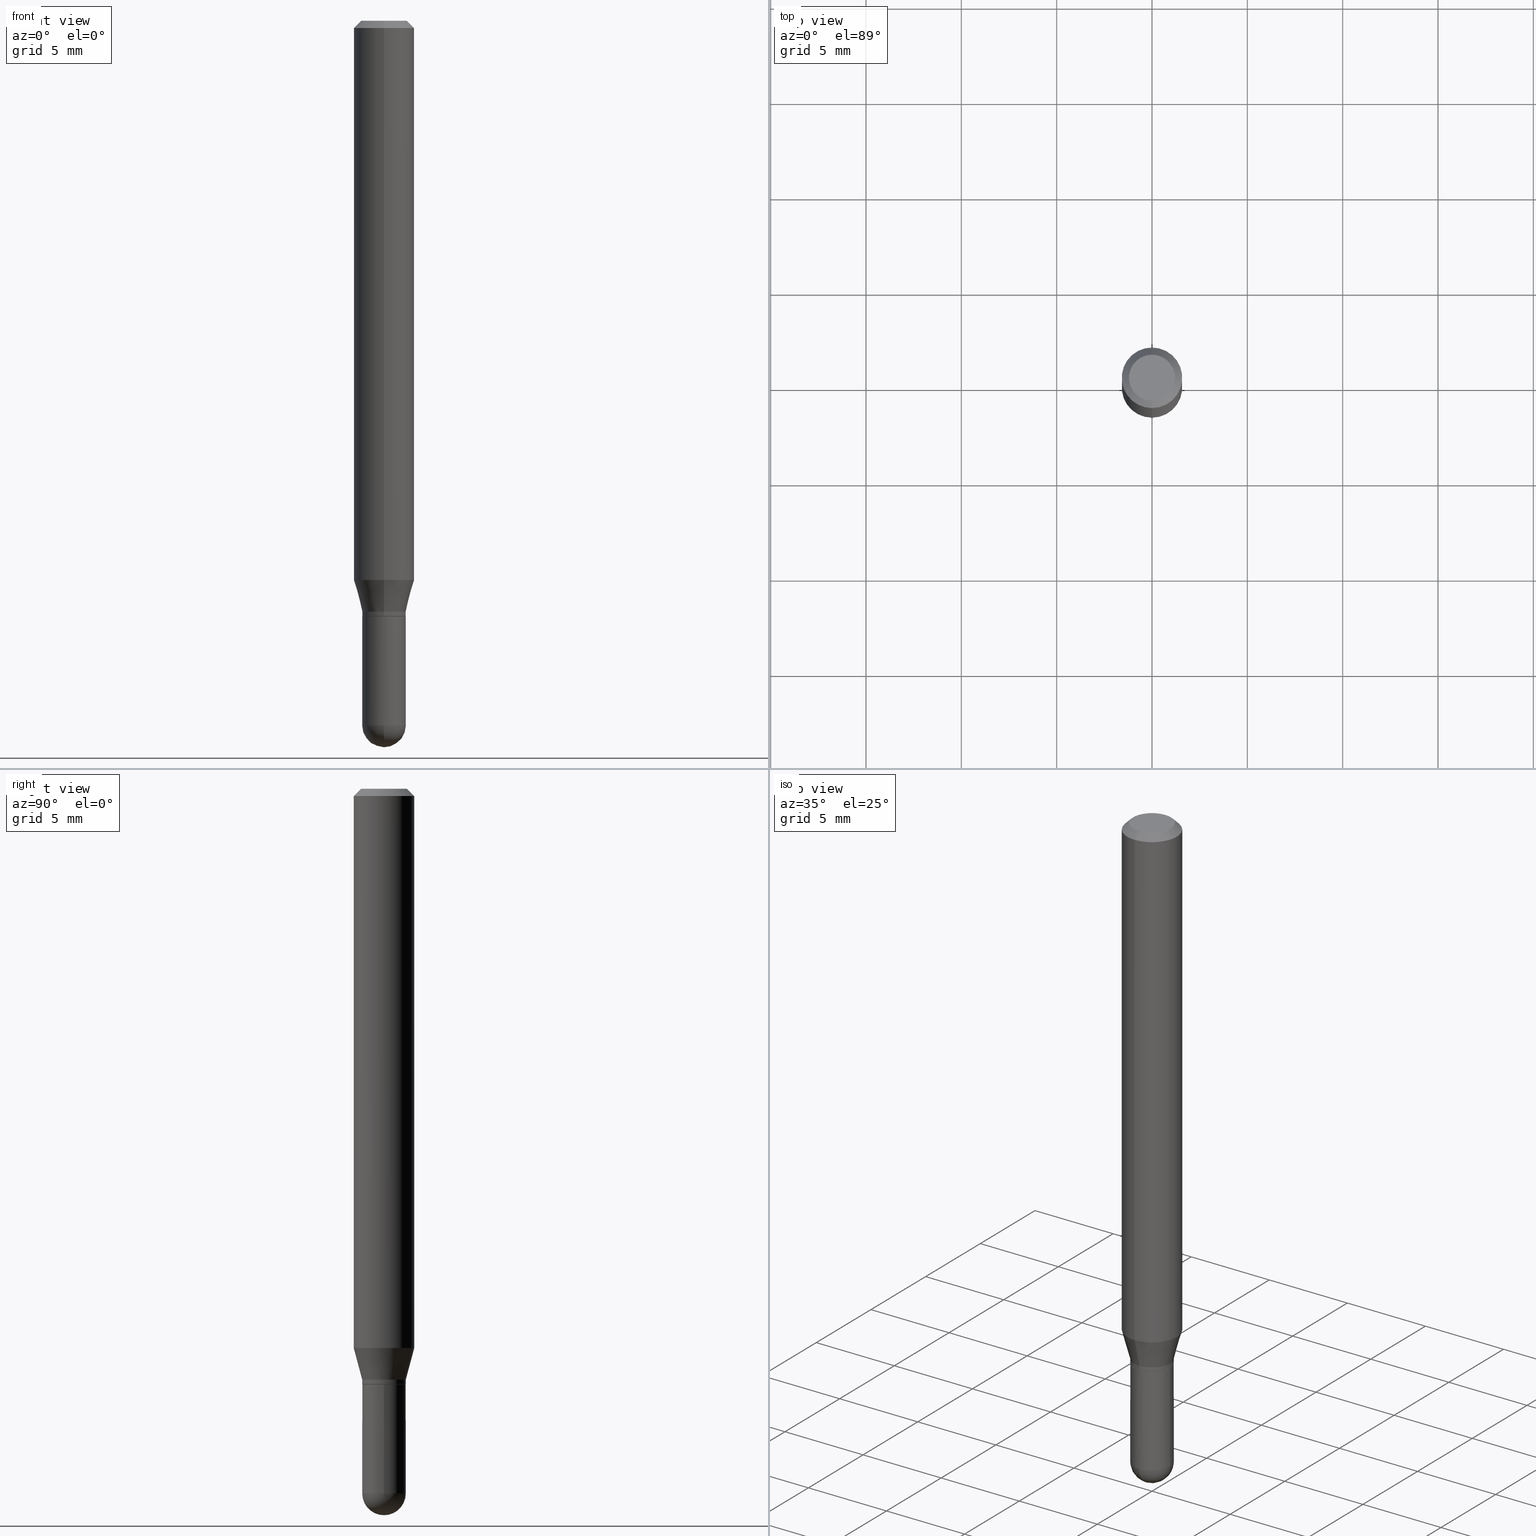
[diagram: canonical four-view strip — front | top / right | iso, engineering-drawing reading convention]
A machine part, canonical four-view strip (front | top / right | iso — engineering-drawing reading convention). The complete STEP part file that produces these views, byte-faithful:
ISO-10303-21;
HEADER;
FILE_DESCRIPTION (( 'STEP AP203' ),
    '1' );
FILE_NAME ('02632.STEP',
    '2024-03-07T20:55:00',
    ( '' ),
    ( '' ),
    'SwSTEP 2.0',
    'SolidWorks 2023',
    '' );
FILE_SCHEMA (( 'CONFIG_CONTROL_DESIGN' ));
ENDSEC;

DATA;
#1 = VERTEX_POINT ( 'NONE', #166 ) ;
#2 = ORIENTED_EDGE ( 'NONE', *, *, #337, .F. ) ;
#3 = FACE_OUTER_BOUND ( 'NONE', #89, .T. ) ;
#4 = DIRECTION ( 'NONE',  ( -2.445470756859343624E-29, 3.491478545366655797E-15, 1.000000000000000000 ) ) ;
#5 = CONICAL_SURFACE ( 'NONE', #70, 0.04449999999999999789, 0.7853981633974739252 ) ;
#6 = CC_DESIGN_SECURITY_CLASSIFICATION ( #303, ( #414 ) ) ;
#7 = ORIENTED_EDGE ( 'NONE', *, *, #8, .F. ) ;
#8 = EDGE_CURVE ( 'NONE', #398, #150, #356, .T. ) ;
#9 = ORIENTED_EDGE ( 'NONE', *, *, #288, .F. ) ;
#10 = ORIENTED_EDGE ( 'NONE', *, *, #31, .F. ) ;
#11 = PERSON_AND_ORGANIZATION ( #320, #64 ) ;
#12 = CIRCLE ( 'NONE', #93, 0.04749999999999999362 ) ;
#13 = ORIENTED_EDGE ( 'NONE', *, *, #36, .T. ) ;
#14 = DIRECTION ( 'NONE',  ( -6.982962677686265922E-15, -1.000000000000000000, 6.070773319253902486E-15 ) ) ;
#15 = EDGE_CURVE ( 'NONE', #37, #479, #294, .T. ) ;
#16 = CARTESIAN_POINT ( 'NONE',  ( 3.668206135289095817E-31, -5.237217818050098401E-17, -0.01500000000000032904 ) ) ;
#17 = DIRECTION ( 'NONE',  ( -6.982962677686265922E-15, -1.000000000000000000, 3.483106191921935554E-15 ) ) ;
#18 = CONICAL_SURFACE ( 'NONE', #168, 0.04500000000000006078, 0.2617993877991500740 ) ;
#19 = AXIS2_PLACEMENT_3D ( 'NONE', #381, #22, #180 ) ;
#20 = VECTOR ( 'NONE', #90, 39.37007874015748143 ) ;
#21 = DIRECTION ( 'NONE',  ( 2.438088387897960049E-29, -3.491481338843145188E-15, -1.000000000000000000 ) ) ;
#22 = DIRECTION ( 'NONE',  ( -2.445468806185136597E-29, 3.491481338843145583E-15, 1.000000000000000000 ) ) ;
#23 = CARTESIAN_POINT ( 'NONE',  ( 3.142333204959120083E-16, 0.04499999999999570316, -1.230000000000000204 ) ) ;
#24 = CARTESIAN_POINT ( 'NONE',  ( 0.000000000000000000, 0.000000000000000000, 0.000000000000000000 ) ) ;
#25 = DIRECTION ( 'NONE',  ( -2.445470756859343624E-29, 3.491478545366655797E-15, 1.000000000000000000 ) ) ;
#26 = DIRECTION ( 'NONE',  ( -2.445470756859343624E-29, 3.491478545366655797E-15, 1.000000000000000000 ) ) ;
#27 = AXIS2_PLACEMENT_3D ( 'NONE', #500, #502, #139 ) ;
#28 = DIRECTION ( 'NONE',  ( -6.982962677686265922E-15, -1.000000000000000000, 3.491478545366655797E-15 ) ) ;
#29 = CIRCLE ( 'NONE', #19, 0.04500000000000001221 ) ;
#30 = ORIENTED_EDGE ( 'NONE', *, *, #175, .F. ) ;
#31 = EDGE_CURVE ( 'NONE', #161, #37, #164, .T. ) ;
#32 = LINE ( 'NONE', #512, #335 ) ;
#33 = DIRECTION ( 'NONE',  ( -2.445468806185136597E-29, 3.491481338843145583E-15, 1.000000000000000000 ) ) ;
#34 = ORIENTED_EDGE ( 'NONE', *, *, #497, .F. ) ;
#35 = CARTESIAN_POINT ( 'NONE',  ( 3.161915174132745937E-16, 0.04449999999999570272, -1.230000000000000204 ) ) ;
#36 = EDGE_CURVE ( 'NONE', #167, #428, #420, .T. ) ;
#37 = VERTEX_POINT ( 'NONE', #324 ) ;
#38 = CIRCLE ( 'NONE', #49, 0.06250000000000000000 ) ;
#39 = MECHANICAL_CONTEXT ( 'NONE', #306, 'mechanical' ) ;
#40 = ORIENTED_EDGE ( 'NONE', *, *, #248, .T. ) ;
#41 = ORIENTED_EDGE ( 'NONE', *, *, #354, .T. ) ;
#42 = CARTESIAN_POINT ( 'NONE',  ( -0.04500000000000000527, 3.197442310920451211E-16, -2.213520790614707910E-30 ) ) ;
#43 = APPROVAL_STATUS ( 'not_yet_approved' ) ;
#44 = ADVANCED_FACE ( 'NONE', ( #3 ), #155, .T. ) ;
#45 = DIRECTION ( 'NONE',  ( -6.982962677686265922E-15, -1.000000000000000000, 3.483106191921935554E-15 ) ) ;
#46 = PERSON_AND_ORGANIZATION_ROLE ( 'creator' ) ;
#47 = ORIENTED_EDGE ( 'NONE', *, *, #282, .T. ) ;
#48 =( LENGTH_UNIT ( ) NAMED_UNIT ( * ) SI_UNIT ( $, .METRE. ) );
#49 = AXIS2_PLACEMENT_3D ( 'NONE', #16, #376, #17 ) ;
#50 = APPROVAL_PERSON_ORGANIZATION ( #95, #129, #290 ) ;
#51 = CC_DESIGN_PERSON_AND_ORGANIZATION_ASSIGNMENT ( #116, #165, ( #468 ) ) ;
#52 = ORIENTED_EDGE ( 'NONE', *, *, #370, .T. ) ;
#53 = ORIENTED_EDGE ( 'NONE', *, *, #8, .T. ) ;
#54 = DIRECTION ( 'NONE',  ( -6.982962677686265922E-15, -1.000000000000000000, 3.069492127712655324E-15 ) ) ;
#55 = LOCAL_TIME ( 15, 55, 0.000000000000000000, #362 ) ;
#56 = DIRECTION ( 'NONE',  ( -2.445470756859343624E-29, 3.491478545366655797E-15, 1.000000000000000000 ) ) ;
#57 = PERSON_AND_ORGANIZATION_ROLE ( 'design_supplier' ) ;
#58 = LINE ( 'NONE', #251, #482 ) ;
#59 = CARTESIAN_POINT ( 'NONE',  ( -3.142333204958468779E-16, -0.04500000000000515393, -1.454999999999999849 ) ) ;
#60 = DIRECTION ( 'NONE',  ( -6.982962677686265922E-15, -1.000000000000000000, 3.491478545366655797E-15 ) ) ;
#61 = CLOSED_SHELL ( 'NONE', ( #365, #463, #474, #488, #377, #253, #136, #44, #76, #194, #372, #436 ) ) ;
#62 = CONICAL_SURFACE ( 'NONE', #441, 0.04449999999999999789, 0.7853981633974739252 ) ;
#63 = PRODUCT_RELATED_PRODUCT_CATEGORY ( 'detail', '', ( #468 ) ) ;
#64 = ORGANIZATION ( 'UNSPECIFIED', 'UNSPECIFIED', '' ) ;
#65 = CARTESIAN_POINT ( 'NONE',  ( 0.000000000000000000, 0.000000000000000000, 0.000000000000000000 ) ) ;
#66 = DIRECTION ( 'NONE',  ( -2.445470756859343624E-29, 3.491478545366655797E-15, 1.000000000000000000 ) ) ;
#67 = CARTESIAN_POINT ( 'NONE',  ( 3.197442310920752950E-16, 0.04499999999999580030, -1.220000000000000417 ) ) ;
#68 = EDGE_CURVE ( 'NONE', #368, #428, #201, .T. ) ;
#69 = ORIENTED_EDGE ( 'NONE', *, *, #15, .F. ) ;
#70 = AXIS2_PLACEMENT_3D ( 'NONE', #475, #26, #466 ) ;
#71 = CARTESIAN_POINT ( 'NONE',  ( 2.823758453890498929E-29, -4.031572257162534122E-15, -1.154689110867545443 ) ) ;
#72 = CIRCLE ( 'NONE', #240, 0.04749999999999999362 ) ;
#73 = ORIENTED_EDGE ( 'NONE', *, *, #296, .T. ) ;
#74 = DIRECTION ( 'NONE',  ( 7.105427357601001070E-15, 1.000000000000000000, 0.000000000000000000 ) ) ;
#75 = ORIENTED_EDGE ( 'NONE', *, *, #99, .T. ) ;
#76 = ADVANCED_FACE ( 'NONE', ( #163 ), #484, .F. ) ;
#77 = COORDINATED_UNIVERSAL_TIME_OFFSET ( 5, 0, .BEHIND. ) ;
#78 = ORIENTED_EDGE ( 'NONE', *, *, #296, .F. ) ;
#79 = CIRCLE ( 'NONE', #326, 0.04500000000000006078 ) ;
#80 = AXIS2_PLACEMENT_3D ( 'NONE', #104, #348, #60 ) ;
#81 = DIRECTION ( 'NONE',  ( 1.000000000000000000, 0.000000000000000000, 0.000000000000000000 ) ) ;
#82 = ORIENTED_EDGE ( 'NONE', *, *, #262, .T. ) ;
#83 = EDGE_CURVE ( 'NONE', #445, #167, #130, .T. ) ;
#84 = VERTEX_POINT ( 'NONE', #214 ) ;
#85 = APPROVAL ( #157, 'UNSPECIFIED' ) ;
#86 = ORIENTED_EDGE ( 'NONE', *, *, #407, .F. ) ;
#87 = AXIS2_PLACEMENT_3D ( 'NONE', #392, #298, #184 ) ;
#88 = DIMENSIONAL_EXPONENTS ( 1.000000000000000000, 0.000000000000000000, 0.000000000000000000, 0.000000000000000000, 0.000000000000000000, 0.000000000000000000, 0.000000000000000000 ) ;
#89 = EDGE_LOOP ( 'NONE', ( #471, #160, #317, #13 ) ) ;
#90 = DIRECTION ( 'NONE',  ( -2.445468806185136877E-29, 3.491481338843145188E-15, 1.000000000000000000 ) ) ;
#91 = APPROVAL_DATE_TIME ( #125, #129 ) ;
#92 = FACE_OUTER_BOUND ( 'NONE', #451, .T. ) ;
#93 = AXIS2_PLACEMENT_3D ( 'NONE', #429, #25, #222 ) ;
#94 = DIRECTION ( 'NONE',  ( -6.982962677686265922E-15, -1.000000000000000000, 3.035386659626955187E-15 ) ) ;
#95 = PERSON_AND_ORGANIZATION ( #320, #64 ) ;
#96 = DIRECTION ( 'NONE',  ( -2.445468806185136597E-29, 3.491481338843145583E-15, 1.000000000000000000 ) ) ;
#97 = ADVANCED_FACE ( 'NONE', ( #289 ), #331, .T. ) ;
#98 = DIRECTION ( 'NONE',  ( 1.000000000000000000, -6.982962677686267499E-15, 4.876176775795935793E-29 ) ) ;
#99 = EDGE_CURVE ( 'NONE', #158, #84, #454, .T. ) ;
#100 = CYLINDRICAL_SURFACE ( 'NONE', #87, 0.04500000000000006078 ) ;
#101 = VECTOR ( 'NONE', #135, 39.37007874015748854 ) ;
#102 = AXIS2_PLACEMENT_3D ( 'NONE', #217, #339, #173 ) ;
#103 = DIRECTION ( 'NONE',  ( -2.445470756859343624E-29, 3.491478545366656192E-15, 1.000000000000000000 ) ) ;
#104 = CARTESIAN_POINT ( 'NONE',  ( 0.000000000000000000, 0.000000000000000000, 0.000000000000000000 ) ) ;
#105 = DIRECTION ( 'NONE',  ( -2.445470756859343624E-29, 3.491478545366655797E-15, 1.000000000000000000 ) ) ;
#106 = DIRECTION ( 'NONE',  ( 1.000000000000000000, -6.982962677686266711E-15, 0.000000000000000000 ) ) ;
#107 = ORIENTED_EDGE ( 'NONE', *, *, #277, .F. ) ;
#108 = CARTESIAN_POINT ( 'NONE',  ( 3.662430836825745564E-29, -5.245488374158964093E-15, -1.500000000000000444 ) ) ;
#109 = APPLICATION_CONTEXT ( 'configuration controlled 3d designs of mechanical parts and assemblies' ) ;
#110 = CIRCLE ( 'NONE', #178, 0.04500000000000006078 ) ;
#111 = SPHERICAL_SURFACE ( 'NONE', #371, 0.04500000000000011630 ) ;
#112 = AXIS2_PLACEMENT_3D ( 'NONE', #367, #402, #361 ) ;
#113 = ORIENTED_EDGE ( 'NONE', *, *, #282, .F. ) ;
#114 = CYLINDRICAL_SURFACE ( 'NONE', #342, 0.04500000000000006078 ) ;
#115 = EDGE_LOOP ( 'NONE', ( #312, #244, #390, #438, #319 ) ) ;
#116 = PERSON_AND_ORGANIZATION ( #320, #64 ) ;
#117 = EDGE_LOOP ( 'NONE', ( #7, #309, #476, #34 ) ) ;
#118 = AXIS2_PLACEMENT_3D ( 'NONE', #23, #21, #212 ) ;
#119 = LOCAL_TIME ( 15, 55, 0.000000000000000000, #213 ) ;
#120 = ORIENTED_EDGE ( 'NONE', *, *, #273, .F. ) ;
#121 = COORDINATED_UNIVERSAL_TIME_OFFSET ( 5, 0, .BEHIND. ) ;
#122 = CC_DESIGN_PERSON_AND_ORGANIZATION_ASSIGNMENT ( #316, #478, ( #234 ) ) ;
#123 = ORIENTED_EDGE ( 'NONE', *, *, #288, .T. ) ;
#124 = ORIENTED_EDGE ( 'NONE', *, *, #318, .F. ) ;
#125 = DATE_AND_TIME ( #453, #119 ) ;
#126 = CARTESIAN_POINT ( 'NONE',  ( 3.316907271900976096E-16, 0.04749999999999999362, -3.299187711060625845E-16 ) ) ;
#127 = AXIS2_PLACEMENT_3D ( 'NONE', #203, #325, #236 ) ;
#128 = VECTOR ( 'NONE', #103, 39.37007874015748143 ) ;
#129 = APPROVAL ( #174, 'UNSPECIFIED' ) ;
#130 = LINE ( 'NONE', #287, #379 ) ;
#131 = DATE_AND_TIME ( #493, #483 ) ;
#132 = VERTEX_POINT ( 'NONE', #417 ) ;
#133 = CARTESIAN_POINT ( 'NONE',  ( 3.197442310920753937E-16, 0.04499999999999574479, -1.229500000000000259 ) ) ;
#134 = AXIS2_PLACEMENT_3D ( 'NONE', #65, #96, #98 ) ;
#135 = DIRECTION ( 'NONE',  ( -1.807323732225328562E-15, -0.2588190451025179639, 0.9659258262890690894 ) ) ;
#136 = ADVANCED_FACE ( 'NONE', ( #336 ), #245, .T. ) ;
#137 = PLANE ( 'NONE',  #118 ) ;
#138 = CARTESIAN_POINT ( 'NONE',  ( 0.04499999999999999833, -4.608755367272951648E-15, -1.230000000000000204 ) ) ;
#139 = DIRECTION ( 'NONE',  ( 1.000000000000000000, -6.982962677686269077E-15, 0.000000000000000000 ) ) ;
#140 = FACE_OUTER_BOUND ( 'NONE', #187, .T. ) ;
#141 = AXIS2_PLACEMENT_3D ( 'NONE', #496, #464, #54 ) ;
#142 = AXIS2_PLACEMENT_3D ( 'NONE', #219, #311, #305 ) ;
#143 = CARTESIAN_POINT ( 'NONE',  ( 3.554308864698067654E-29, -5.085616258612941015E-15, -1.455000000000000293 ) ) ;
#144 = CARTESIAN_POINT ( 'NONE',  ( 0.04500000000000000527, -3.142333204958820809E-16, 2.194279549108171317E-30 ) ) ;
#145 = VERTEX_POINT ( 'NONE', #382 ) ;
#146 = DIRECTION ( 'NONE',  ( -2.445470756859343624E-29, 3.491478545366655797E-15, 1.000000000000000000 ) ) ;
#147 = VERTEX_POINT ( 'NONE', #375 ) ;
#148 = LINE ( 'NONE', #35, #274 ) ;
#149 = DIRECTION ( 'NONE',  ( -6.982962677686265922E-15, -1.000000000000000000, 3.069492127712655324E-15 ) ) ;
#150 = VERTEX_POINT ( 'NONE', #59 ) ;
#151 = CLOSED_SHELL ( 'NONE', ( #97, #404, #249, #192, #459 ) ) ;
#152 = VECTOR ( 'NONE', #210, 39.37007874015748143 ) ;
#153 = DIRECTION ( 'NONE',  ( -6.982962677686265922E-15, -1.000000000000000000, 4.370956789862821150E-15 ) ) ;
#154 = CC_DESIGN_APPROVAL ( #85, ( #234 ) ) ;
#155 = CONICAL_SURFACE ( 'NONE', #450, 0.06250000000000000000, 0.7853981633974483900 ) ;
#156 = CC_DESIGN_DATE_AND_TIME_ASSIGNMENT ( #131, #412, ( #303 ) ) ;
#157 = APPROVAL_STATUS ( 'not_yet_approved' ) ;
#158 = VERTEX_POINT ( 'NONE', #133 ) ;
#159 =( NAMED_UNIT ( * ) PLANE_ANGLE_UNIT ( ) SI_UNIT ( $, .RADIAN. ) );
#160 = ORIENTED_EDGE ( 'NONE', *, *, #299, .F. ) ;
#161 = VERTEX_POINT ( 'NONE', #411 ) ;
#162 = AXIS2_PLACEMENT_3D ( 'NONE', #247, #208, #14 ) ;
#163 = FACE_OUTER_BOUND ( 'NONE', #238, .T. ) ;
#164 = LINE ( 'NONE', #42, #20 ) ;
#165 = PERSON_AND_ORGANIZATION_ROLE ( 'design_owner' ) ;
#166 = CARTESIAN_POINT ( 'NONE',  ( -4.364351673553634183E-16, -0.06250000000000402456, -1.154689110867545221 ) ) ;
#167 = VERTEX_POINT ( 'NONE', #373 ) ;
#168 = AXIS2_PLACEMENT_3D ( 'NONE', #341, #258, #308 ) ;
#169 = CC_DESIGN_APPROVAL ( #385, ( #414 ) ) ;
#170 = AXIS2_PLACEMENT_3D ( 'NONE', #423, #383, #106 ) ;
#171 = DIRECTION ( 'NONE',  ( -2.445468806185136597E-29, 3.491481338843145583E-15, 1.000000000000000000 ) ) ;
#172 = DIRECTION ( 'NONE',  ( 4.937700262164548042E-15, 0.7071067811865451302, -0.7071067811865499042 ) ) ;
#173 = DIRECTION ( 'NONE',  ( -6.982962677686265922E-15, -1.000000000000000000, 3.491478545366656192E-15 ) ) ;
#174 = APPROVAL_STATUS ( 'not_yet_approved' ) ;
#175 = EDGE_CURVE ( 'NONE', #428, #167, #38, .T. ) ;
#176 = LINE ( 'NONE', #499, #101 ) ;
#177 = DIRECTION ( 'NONE',  ( -6.982962677686265922E-15, -1.000000000000000000, 6.070773319253902486E-15 ) ) ;
#178 = AXIS2_PLACEMENT_3D ( 'NONE', #228, #66, #260 ) ;
#179 = CARTESIAN_POINT ( 'NONE',  ( 2.983474323368400179E-29, -4.259603825347321390E-15, -1.220000000000000417 ) ) ;
#180 = DIRECTION ( 'NONE',  ( 1.000000000000000000, -6.982962677686266711E-15, 0.000000000000000000 ) ) ;
#181 = DIRECTION ( 'NONE',  ( -6.982962677686265922E-15, -1.000000000000000000, 3.035386659626955187E-15 ) ) ;
#182 = CARTESIAN_POINT ( 'NONE',  ( 8.024740890725792130E-45, -1.145718490949312714E-30, -3.281470804022929806E-16 ) ) ;
#183 = LINE ( 'NONE', #67, #239 ) ;
#184 = DIRECTION ( 'NONE',  ( -6.982962677686265922E-15, -1.000000000000000000, 3.491478545366655797E-15 ) ) ;
#185 = CIRCLE ( 'NONE', #422, 0.04500000000000006078 ) ;
#186 = CARTESIAN_POINT ( 'NONE',  ( -3.142333204958524493E-16, -0.04500000000000436984, -1.229500000000000037 ) ) ;
#187 = EDGE_LOOP ( 'NONE', ( #10, #189, #272, #405, #69 ) ) ;
#188 = FACE_OUTER_BOUND ( 'NONE', #480, .T. ) ;
#189 = ORIENTED_EDGE ( 'NONE', *, *, #407, .T. ) ;
#190 = MANIFOLD_SOLID_BREP ( 'Body-Move/Copy2[1]', #151 ) ;
#191 = CARTESIAN_POINT ( 'NONE',  ( 3.554308864698067654E-29, -5.085616258612941015E-15, -1.455000000000000293 ) ) ;
#192 = ADVANCED_FACE ( 'NONE', ( #494 ), #416, .T. ) ;
#193 = ORIENTED_EDGE ( 'NONE', *, *, #262, .F. ) ;
#194 = ADVANCED_FACE ( 'NONE', ( #92 ), #300, .F. ) ;
#195 = AXIS2_PLACEMENT_3D ( 'NONE', #199, #4, #45 ) ;
#196 = VECTOR ( 'NONE', #223, 39.37007874015748143 ) ;
#197 = ORIENTED_EDGE ( 'NONE', *, *, #15, .T. ) ;
#198 = ORIENTED_EDGE ( 'NONE', *, *, #329, .T. ) ;
#199 = CARTESIAN_POINT ( 'NONE',  ( 3.668206135289095817E-31, -5.237217818050098401E-17, -0.01500000000000032904 ) ) ;
#200 = APPROVAL_ROLE ( '' ) ;
#201 = LINE ( 'NONE', #489, #380 ) ;
#202 = CIRCLE ( 'NONE', #293, 0.04500000000000006078 ) ;
#203 = CARTESIAN_POINT ( 'NONE',  ( 3.554308864698067654E-29, -5.085616258612941015E-15, -1.455000000000000293 ) ) ;
#204 = CARTESIAN_POINT ( 'NONE',  ( 0.000000000000000000, 0.000000000000000000, 0.000000000000000000 ) ) ;
#205 = DIRECTION ( 'NONE',  ( 6.982962677686265922E-15, 1.000000000000000000, -3.483106191921935554E-15 ) ) ;
#206 = ORIENTED_EDGE ( 'NONE', *, *, #467, .T. ) ;
#207 = SECURITY_CLASSIFICATION_LEVEL ( 'unclassified' ) ;
#208 = DIRECTION ( 'NONE',  ( 1.000000000000000000, -6.982962677686265922E-15, 4.883557194083112340E-29 ) ) ;
#209 = AXIS2_PLACEMENT_3D ( 'NONE', #462, #56, #250 ) ;
#210 = DIRECTION ( 'NONE',  ( -2.445470756859343624E-29, 3.491478545366656192E-15, 1.000000000000000000 ) ) ;
#211 = UNCERTAINTY_MEASURE_WITH_UNIT (LENGTH_MEASURE( 1.000000000000000082E-05 ), #446, 'distance_accuracy_value', 'NONE');
#212 = DIRECTION ( 'NONE',  ( -1.000000000000000000, 6.982962677686265922E-15, -4.876176775795935793E-29 ) ) ;
#213 = COORDINATED_UNIVERSAL_TIME_OFFSET ( 5, 0, .BEHIND. ) ;
#214 = CARTESIAN_POINT ( 'NONE',  ( 3.819167204710830318E-16, 0.04499999999999580030, -1.220000000000000417 ) ) ;
#215 = DIRECTION ( 'NONE',  ( 1.000000000000000000, -6.982962677686266711E-15, 0.000000000000000000 ) ) ;
#216 = AXIS2_PLACEMENT_3D ( 'NONE', #71, #220, #268 ) ;
#217 = CARTESIAN_POINT ( 'NONE',  ( 3.007929030936992806E-29, -4.294518610800986950E-15, -1.230000000000000204 ) ) ;
#218 = CC_DESIGN_PERSON_AND_ORGANIZATION_ASSIGNMENT ( #11, #328, ( #303 ) ) ;
#219 = CARTESIAN_POINT ( 'NONE',  ( 3.668206135289095817E-31, -5.237217818050098401E-17, -0.01500000000000032904 ) ) ;
#220 = DIRECTION ( 'NONE',  ( -2.445470756859343624E-29, 3.491478545366655797E-15, 1.000000000000000000 ) ) ;
#221 = ORIENTED_EDGE ( 'NONE', *, *, #337, .T. ) ;
#222 = DIRECTION ( 'NONE',  ( -6.982962677686266711E-15, -1.000000000000000000, 3.491478545366656192E-15 ) ) ;
#223 = DIRECTION ( 'NONE',  ( -2.445468806185136877E-29, 3.491481338843145188E-15, 1.000000000000000000 ) ) ;
#224 = ORIENTED_EDGE ( 'NONE', *, *, #329, .F. ) ;
#225 = CIRCLE ( 'NONE', #430, 0.04449999999999999789 ) ;
#226 = APPROVAL_PERSON_ORGANIZATION ( #271, #85, #487 ) ;
#227 = LINE ( 'NONE', #387, #128 ) ;
#228 = CARTESIAN_POINT ( 'NONE',  ( 3.006706295558563202E-29, -4.292772871528303633E-15, -1.229500000000000037 ) ) ;
#229 = APPROVAL_DATE_TIME ( #269, #85 ) ;
#230 = VERTEX_POINT ( 'NONE', #461 ) ;
#231 = EDGE_LOOP ( 'NONE', ( #511, #73, #321, #113 ) ) ;
#232 = CIRCLE ( 'NONE', #313, 0.04500000000000001221 ) ;
#233 = LOCAL_TIME ( 15, 55, 0.000000000000000000, #77 ) ;
#234 = PRODUCT_DEFINITION ( 'UNKNOWN', '', #414, #418 ) ;
#235 = CALENDAR_DATE ( 2024, 7, 3 ) ;
#236 = DIRECTION ( 'NONE',  ( -6.982962677686265922E-15, -1.000000000000000000, 0.000000000000000000 ) ) ;
#237 = CALENDAR_DATE ( 2024, 7, 3 ) ;
#238 = EDGE_LOOP ( 'NONE', ( #393, #270 ) ) ;
#239 = VECTOR ( 'NONE', #353, 39.37007874015748854 ) ;
#240 = AXIS2_PLACEMENT_3D ( 'NONE', #182, #340, #503 ) ;
#241 = EDGE_LOOP ( 'NONE', ( #124, #53, #86, #261 ) ) ;
#242 = EDGE_CURVE ( 'NONE', #479, #37, #283, .T. ) ;
#243 = CC_DESIGN_PERSON_AND_ORGANIZATION_ASSIGNMENT ( #374, #57, ( #414 ) ) ;
#244 = ORIENTED_EDGE ( 'NONE', *, *, #31, .T. ) ;
#245 = CYLINDRICAL_SURFACE ( 'NONE', #209, 0.06250000000000000000 ) ;
#246 = CARTESIAN_POINT ( 'NONE',  ( 2.983474323368400179E-29, -4.259603825347321390E-15, -1.220000000000000417 ) ) ;
#247 = CARTESIAN_POINT ( 'NONE',  ( 3.554308864698067654E-29, -5.085616258612941015E-15, -1.455000000000000293 ) ) ;
#248 = EDGE_CURVE ( 'NONE', #352, #132, #254, .T. ) ;
#249 = ADVANCED_FACE ( 'NONE', ( #333 ), #137, .F. ) ;
#250 = DIRECTION ( 'NONE',  ( -6.982962677686265922E-15, -1.000000000000000000, 3.491478545366655797E-15 ) ) ;
#251 = CARTESIAN_POINT ( 'NONE',  ( 4.364351673553919652E-16, 0.06249999999999995143, -0.01500000000000054588 ) ) ;
#252 = EDGE_CURVE ( 'NONE', #323, #230, #358, .T. ) ;
#253 = ADVANCED_FACE ( 'NONE', ( #421 ), #264, .T. ) ;
#254 = LINE ( 'NONE', #297, #406 ) ;
#255 = FACE_OUTER_BOUND ( 'NONE', #330, .T. ) ;
#256 = AXIS2_PLACEMENT_3D ( 'NONE', #191, #469, #74 ) ;
#257 = CARTESIAN_POINT ( 'NONE',  ( -3.773273898774340269E-16, -0.04749999999999999362, -1.623018494973768125E-16 ) ) ;
#258 = DIRECTION ( 'NONE',  ( -2.445470756859343624E-29, 3.491478545366655797E-15, 1.000000000000000000 ) ) ;
#259 = ORIENTED_EDGE ( 'NONE', *, *, #175, .T. ) ;
#260 = DIRECTION ( 'NONE',  ( -6.982962677686265922E-15, -1.000000000000000000, 3.035386659626955187E-15 ) ) ;
#261 = ORIENTED_EDGE ( 'NONE', *, *, #490, .F. ) ;
#262 = EDGE_CURVE ( 'NONE', #132, #84, #202, .T. ) ;
#263 = FACE_OUTER_BOUND ( 'NONE', #447, .T. ) ;
#264 = CONICAL_SURFACE ( 'NONE', #399, 0.04500000000000006078, 0.2617993877991500740 ) ;
#265 = DIRECTION ( 'NONE',  ( 5.024295867788190974E-15, 0.7071067811865681119, 0.7071067811865270336 ) ) ;
#266 = DIRECTION ( 'NONE',  ( 0.000000000000000000, 0.000000000000000000, 1.000000000000000000 ) ) ;
#267 = ORIENTED_EDGE ( 'NONE', *, *, #36, .F. ) ;
#268 = DIRECTION ( 'NONE',  ( -6.982962677686265922E-15, -1.000000000000000000, 4.370956789862821150E-15 ) ) ;
#269 = DATE_AND_TIME ( #235, #314 ) ;
#270 = ORIENTED_EDGE ( 'NONE', *, *, #501, .T. ) ;
#271 = PERSON_AND_ORGANIZATION ( #320, #64 ) ;
#272 = ORIENTED_EDGE ( 'NONE', *, *, #497, .T. ) ;
#273 = EDGE_CURVE ( 'NONE', #145, #167, #58, .T. ) ;
#274 = VECTOR ( 'NONE', #265, 39.37007874015748143 ) ;
#275 = APPROVAL_PERSON_ORGANIZATION ( #401, #385, #200 ) ;
#276 = EDGE_LOOP ( 'NONE', ( #224, #486, #410, #9 ) ) ;
#277 = EDGE_CURVE ( 'NONE', #132, #1, #176, .T. ) ;
#278 = DATE_AND_TIME ( #237, #55 ) ;
#279 = ORIENTED_EDGE ( 'NONE', *, *, #409, .F. ) ;
#280 = ORIENTED_EDGE ( 'NONE', *, *, #248, .F. ) ;
#281 = SHAPE_DEFINITION_REPRESENTATION ( #332, #439 ) ;
#282 = EDGE_CURVE ( 'NONE', #323, #352, #32, .T. ) ;
#283 = CIRCLE ( 'NONE', #27, 0.04499999999999999833 ) ;
#284 = CC_DESIGN_APPROVAL ( #129, ( #303 ) ) ;
#285 = EDGE_CURVE ( 'NONE', #352, #158, #110, .T. ) ;
#286 = ORIENTED_EDGE ( 'NONE', *, *, #83, .F. ) ;
#287 = CARTESIAN_POINT ( 'NONE',  ( 4.440892098500625669E-16, 0.06250000000000000000, -2.182174090854159873E-16 ) ) ;
#288 = EDGE_CURVE ( 'NONE', #445, #1, #449, .T. ) ;
#289 = FACE_OUTER_BOUND ( 'NONE', #115, .T. ) ;
#290 = APPROVAL_ROLE ( '' ) ;
#291 = DIRECTION ( 'NONE',  ( -6.982962677686265922E-15, -1.000000000000000000, 3.035386659626955187E-15 ) ) ;
#292 = DIRECTION ( 'NONE',  ( -2.445470756859343624E-29, 3.491478545366655797E-15, 1.000000000000000000 ) ) ;
#293 = AXIS2_PLACEMENT_3D ( 'NONE', #179, #457, #94 ) ;
#294 = CIRCLE ( 'NONE', #112, 0.04499999999999999833 ) ;
#295 = CARTESIAN_POINT ( 'NONE',  ( 2.983474323368400179E-29, -4.259603825347321390E-15, -1.220000000000000417 ) ) ;
#296 = EDGE_CURVE ( 'NONE', #230, #158, #148, .T. ) ;
#297 = CARTESIAN_POINT ( 'NONE',  ( -3.142333204958823767E-16, -0.04500000000000006078, 1.571165345414997288E-16 ) ) ;
#298 = DIRECTION ( 'NONE',  ( -2.445470756859343624E-29, 3.491478545366655797E-15, 1.000000000000000000 ) ) ;
#299 = EDGE_CURVE ( 'NONE', #145, #368, #12, .T. ) ;
#300 = PLANE ( 'NONE',  #102 ) ;
#301 = AXIS2_PLACEMENT_3D ( 'NONE', #347, #310, #153 ) ;
#302 = DIRECTION ( 'NONE',  ( 1.000000000000000000, -6.982962677686267499E-15, 4.876176775795935793E-29 ) ) ;
#303 = SECURITY_CLASSIFICATION ( '', '', #207 ) ;
#304 = DIRECTION ( 'NONE',  ( 1.000000000000000000, -6.982962677686265922E-15, 4.883557194083112340E-29 ) ) ;
#305 = DIRECTION ( 'NONE',  ( 6.982962677686265922E-15, 1.000000000000000000, -3.483106191921935554E-15 ) ) ;
#306 = APPLICATION_CONTEXT ( 'configuration controlled 3d designs of mechanical parts and assemblies' ) ;
#307 = ORIENTED_EDGE ( 'NONE', *, *, #370, .F. ) ;
#308 = DIRECTION ( 'NONE',  ( -6.982962677686265922E-15, -1.000000000000000000, 3.035386659626955187E-15 ) ) ;
#309 = ORIENTED_EDGE ( 'NONE', *, *, #318, .T. ) ;
#310 = DIRECTION ( 'NONE',  ( -2.445470756859343624E-29, 3.491478545366655797E-15, 1.000000000000000000 ) ) ;
#311 = DIRECTION ( 'NONE',  ( 2.445470756859343624E-29, -3.491478545366655797E-15, -1.000000000000000000 ) ) ;
#312 = ORIENTED_EDGE ( 'NONE', *, *, #490, .T. ) ;
#313 = AXIS2_PLACEMENT_3D ( 'NONE', #315, #171, #491 ) ;
#314 = LOCAL_TIME ( 15, 55, 0.000000000000000000, #121 ) ;
#315 = CARTESIAN_POINT ( 'NONE',  ( 3.558157112999374623E-29, -5.080105348016777334E-15, -1.455000000000000293 ) ) ;
#316 = PERSON_AND_ORGANIZATION ( #320, #64 ) ;
#317 = ORIENTED_EDGE ( 'NONE', *, *, #273, .T. ) ;
#318 = EDGE_CURVE ( 'NONE', #398, #147, #473, .T. ) ;
#319 = ORIENTED_EDGE ( 'NONE', *, *, #495, .T. ) ;
#320 = PERSON ( 'UNSPECIFIED', 'UNSPECIFIED', 'UNSPECIFIED', ('UNSPECIFIED'), ('UNSPECIFIED'), ('UNSPECIFIED') ) ;
#321 = ORIENTED_EDGE ( 'NONE', *, *, #285, .F. ) ;
#322 = APPROVAL_DATE_TIME ( #278, #385 ) ;
#323 = VERTEX_POINT ( 'NONE', #394 ) ;
#324 = CARTESIAN_POINT ( 'NONE',  ( -0.04499999999999999833, -4.367569466304877886E-15, -1.230000000000000204 ) ) ;
#325 = DIRECTION ( 'NONE',  ( -1.000000000000000000, 6.982962677686265922E-15, -4.883557194083112340E-29 ) ) ;
#326 = AXIS2_PLACEMENT_3D ( 'NONE', #246, #413, #291 ) ;
#327 = DIRECTION ( 'NONE',  ( 6.982962677686265922E-15, 1.000000000000000000, -3.491478545366656192E-15 ) ) ;
#328 = PERSON_AND_ORGANIZATION_ROLE ( 'classification_officer' ) ;
#329 = EDGE_CURVE ( 'NONE', #84, #445, #183, .T. ) ;
#330 = EDGE_LOOP ( 'NONE', ( #432, #442, #259, #120 ) ) ;
#331 = CYLINDRICAL_SURFACE ( 'NONE', #134, 0.04500000000000000527 ) ;
#332 = PRODUCT_DEFINITION_SHAPE ( 'NONE', 'NONE',  #234 ) ;
#333 = FACE_OUTER_BOUND ( 'NONE', #349, .T. ) ;
#334 = DIRECTION ( 'NONE',  ( -2.445470756859343624E-29, 3.491478545366656192E-15, 1.000000000000000000 ) ) ;
#335 = VECTOR ( 'NONE', #510, 39.37007874015748143 ) ;
#336 = FACE_OUTER_BOUND ( 'NONE', #357, .T. ) ;
#337 = EDGE_CURVE ( 'NONE', #1, #428, #227, .T. ) ;
#338 = CARTESIAN_POINT ( 'NONE',  ( 3.558157112999374623E-29, -5.080105348016777334E-15, -1.455000000000000293 ) ) ;
#339 = DIRECTION ( 'NONE',  ( -2.445470756859342783E-29, 3.491478545366656192E-15, 1.000000000000000000 ) ) ;
#340 = DIRECTION ( 'NONE',  ( -2.445470756859343624E-29, 3.491478545366655797E-15, 1.000000000000000000 ) ) ;
#341 = CARTESIAN_POINT ( 'NONE',  ( 2.983474323368400179E-29, -4.259603825347321390E-15, -1.220000000000000417 ) ) ;
#342 = AXIS2_PLACEMENT_3D ( 'NONE', #384, #105, #28 ) ;
#343 = CARTESIAN_POINT ( 'NONE',  ( 3.007929030936992806E-29, -4.294518610800986950E-15, -1.230000000000000204 ) ) ;
#344 = CONICAL_SURFACE ( 'NONE', #142, 0.06250000000000000000, 0.7853981633974483900 ) ;
#345 = EDGE_LOOP ( 'NONE', ( #82, #198, #307, #107 ) ) ;
#346 = CC_DESIGN_PERSON_AND_ORGANIZATION_ASSIGNMENT ( #403, #46, ( #414 ) ) ;
#347 = CARTESIAN_POINT ( 'NONE',  ( 2.823758453890498929E-29, -4.031572257162534122E-15, -1.154689110867545443 ) ) ;
#348 = DIRECTION ( 'NONE',  ( -2.445470756859343624E-29, 3.491478545366655797E-15, 1.000000000000000000 ) ) ;
#349 = EDGE_LOOP ( 'NONE', ( #452, #197 ) ) ;
#350 = FACE_OUTER_BOUND ( 'NONE', #117, .T. ) ;
#351 = FACE_OUTER_BOUND ( 'NONE', #231, .T. ) ;
#352 = VERTEX_POINT ( 'NONE', #186 ) ;
#353 = DIRECTION ( 'NONE',  ( 1.839019923739598738E-15, 0.2588190451025247363, 0.9659258262890673130 ) ) ;
#354 = EDGE_CURVE ( 'NONE', #158, #352, #185, .T. ) ;
#355 = LENGTH_MEASURE_WITH_UNIT ( LENGTH_MEASURE( 0.02539999999999999897 ), #48 );
#356 = CIRCLE ( 'NONE', #127, 0.04500000000000011630 ) ;
#357 = EDGE_LOOP ( 'NONE', ( #286, #123, #221, #267 ) ) ;
#358 = CIRCLE ( 'NONE', #141, 0.04449999999999999789 ) ;
#359 = DATE_TIME_ROLE ( 'creation_date' ) ;
#360 = EDGE_LOOP ( 'NONE', ( #78, #206, #47, #408 ) ) ;
#361 = DIRECTION ( 'NONE',  ( 1.000000000000000000, -6.982962677686269077E-15, 0.000000000000000000 ) ) ;
#362 = COORDINATED_UNIVERSAL_TIME_OFFSET ( 5, 0, .BEHIND. ) ;
#363 = DIRECTION ( 'NONE',  ( -4.851104656540964275E-15, -0.7071067811865500152, -0.7071067811865450192 ) ) ;
#364 = AXIS2_PLACEMENT_3D ( 'NONE', #126, #369, #327 ) ;
#365 = ADVANCED_FACE ( 'NONE', ( #188 ), #114, .T. ) ;
#366 = MANIFOLD_SOLID_BREP ( 'Body-Move/Copy2[2]', #61 ) ;
#367 = CARTESIAN_POINT ( 'NONE',  ( 3.007926631607718216E-29, -4.294522046777069173E-15, -1.230000000000000204 ) ) ;
#368 = VERTEX_POINT ( 'NONE', #257 ) ;
#369 = DIRECTION ( 'NONE',  ( 2.445470756859342783E-29, -3.491478545366656192E-15, -1.000000000000000000 ) ) ;
#370 = EDGE_CURVE ( 'NONE', #1, #445, #455, .T. ) ;
#371 = AXIS2_PLACEMENT_3D ( 'NONE', #143, #304, #177 ) ;
#372 = ADVANCED_FACE ( 'NONE', ( #424 ), #62, .T. ) ;
#373 = CARTESIAN_POINT ( 'NONE',  ( 4.440892098500909166E-16, 0.06249999999999993755, -0.01500000000000054588 ) ) ;
#374 = PERSON_AND_ORGANIZATION ( #320, #64 ) ;
#375 = CARTESIAN_POINT ( 'NONE',  ( 3.197442310920811129E-16, 0.04499999999999498151, -1.455000000000000515 ) ) ;
#376 = DIRECTION ( 'NONE',  ( -2.445470756859343624E-29, 3.491478545366655797E-15, 1.000000000000000000 ) ) ;
#377 = ADVANCED_FACE ( 'NONE', ( #391 ), #18, .T. ) ;
#378 = CARTESIAN_POINT ( 'NONE',  ( 3.197442310920454169E-16, 0.04500000000000006078, -1.571165345414997288E-16 ) ) ;
#379 = VECTOR ( 'NONE', #415, 39.37007874015748143 ) ;
#380 = VECTOR ( 'NONE', #363, 39.37007874015748143 ) ;
#381 = CARTESIAN_POINT ( 'NONE',  ( 3.558157112999374623E-29, -5.080105348016777334E-15, -1.455000000000000293 ) ) ;
#382 = CARTESIAN_POINT ( 'NONE',  ( 3.840629472727447874E-16, 0.04749999999999999362, -4.939923113072091241E-16 ) ) ;
#383 = DIRECTION ( 'NONE',  ( -2.445468806185136597E-29, 3.491481338843145583E-15, 1.000000000000000000 ) ) ;
#384 = CARTESIAN_POINT ( 'NONE',  ( 0.000000000000000000, 0.000000000000000000, 0.000000000000000000 ) ) ;
#385 = APPROVAL ( #43, 'UNSPECIFIED' ) ;
#386 = CYLINDRICAL_SURFACE ( 'NONE', #388, 0.04500000000000000527 ) ;
#387 = CARTESIAN_POINT ( 'NONE',  ( -4.364351673553916201E-16, -0.06250000000000000000, 2.182174090854159873E-16 ) ) ;
#388 = AXIS2_PLACEMENT_3D ( 'NONE', #24, #33, #302 ) ;
#389 = LINE ( 'NONE', #144, #196 ) ;
#390 = ORIENTED_EDGE ( 'NONE', *, *, #242, .F. ) ;
#391 = FACE_OUTER_BOUND ( 'NONE', #345, .T. ) ;
#392 = CARTESIAN_POINT ( 'NONE',  ( 0.000000000000000000, 0.000000000000000000, 0.000000000000000000 ) ) ;
#393 = ORIENTED_EDGE ( 'NONE', *, *, #299, .T. ) ;
#394 = CARTESIAN_POINT ( 'NONE',  ( -3.107418391570087519E-16, -0.04450000000000429307, -1.229999999999999982 ) ) ;
#395 = VERTEX_POINT ( 'NONE', #504 ) ;
#396 = CC_DESIGN_DATE_AND_TIME_ASSIGNMENT ( #440, #359, ( #234 ) ) ;
#397 = CALENDAR_DATE ( 2024, 7, 3 ) ;
#398 = VERTEX_POINT ( 'NONE', #108 ) ;
#399 = AXIS2_PLACEMENT_3D ( 'NONE', #295, #292, #181 ) ;
#400 = EDGE_LOOP ( 'NONE', ( #52, #507, #30, #2 ) ) ;
#401 = PERSON_AND_ORGANIZATION ( #320, #64 ) ;
#402 = DIRECTION ( 'NONE',  ( -2.445468806185136597E-29, 3.491481338843145583E-15, 1.000000000000000000 ) ) ;
#403 = PERSON_AND_ORGANIZATION ( #320, #64 ) ;
#404 = ADVANCED_FACE ( 'NONE', ( #350 ), #111, .T. ) ;
#405 = ORIENTED_EDGE ( 'NONE', *, *, #444, .T. ) ;
#406 = VECTOR ( 'NONE', #334, 39.37007874015748143 ) ;
#407 = EDGE_CURVE ( 'NONE', #161, #150, #232, .T. ) ;
#408 = ORIENTED_EDGE ( 'NONE', *, *, #354, .F. ) ;
#409 = EDGE_CURVE ( 'NONE', #84, #132, #79, .T. ) ;
#410 = ORIENTED_EDGE ( 'NONE', *, *, #277, .T. ) ;
#411 = CARTESIAN_POINT ( 'NONE',  ( -0.04500000000000001221, -4.367569466304877886E-15, -1.455000000000000293 ) ) ;
#412 = DATE_TIME_ROLE ( 'classification_date' ) ;
#413 = DIRECTION ( 'NONE',  ( -2.445470756859343624E-29, 3.491478545366655797E-15, 1.000000000000000000 ) ) ;
#414 = PRODUCT_DEFINITION_FORMATION_WITH_SPECIFIED_SOURCE ( 'ANY', '', #468, .NOT_KNOWN. ) ;
#415 = DIRECTION ( 'NONE',  ( -2.445470756859343624E-29, 3.491478545366656192E-15, 1.000000000000000000 ) ) ;
#416 = SPHERICAL_SURFACE ( 'NONE', #162, 0.04500000000000011630 ) ;
#417 = CARTESIAN_POINT ( 'NONE',  ( -3.142333204958525479E-16, -0.04500000000000432127, -1.220000000000000195 ) ) ;
#418 = DESIGN_CONTEXT ( 'detailed design', #109, 'design' ) ;
#419 = FACE_OUTER_BOUND ( 'NONE', #400, .T. ) ;
#420 = CIRCLE ( 'NONE', #195, 0.06250000000000000000 ) ;
#421 = FACE_OUTER_BOUND ( 'NONE', #276, .T. ) ;
#422 = AXIS2_PLACEMENT_3D ( 'NONE', #472, #426, #433 ) ;
#423 = CARTESIAN_POINT ( 'NONE',  ( 3.558157112999374623E-29, -5.080105348016777334E-15, -1.455000000000000293 ) ) ;
#424 = FACE_OUTER_BOUND ( 'NONE', #360, .T. ) ;
#425 = CYLINDRICAL_SURFACE ( 'NONE', #80, 0.06250000000000000000 ) ;
#426 = DIRECTION ( 'NONE',  ( -2.445470756859343624E-29, 3.491478545366655797E-15, 1.000000000000000000 ) ) ;
#427 = CARTESIAN_POINT ( 'NONE',  ( 4.440892098500907193E-16, 0.06249999999999596156, -1.154689110867545665 ) ) ;
#428 = VERTEX_POINT ( 'NONE', #460 ) ;
#429 = CARTESIAN_POINT ( 'NONE',  ( 8.024740890725792130E-45, -1.145718490949312714E-30, -3.281470804022929806E-16 ) ) ;
#430 = AXIS2_PLACEMENT_3D ( 'NONE', #343, #506, #149 ) ;
#431 = ORIENTED_EDGE ( 'NONE', *, *, #252, .F. ) ;
#432 = ORIENTED_EDGE ( 'NONE', *, *, #501, .F. ) ;
#433 = DIRECTION ( 'NONE',  ( -6.982962677686265922E-15, -1.000000000000000000, 3.035386659626955187E-15 ) ) ;
#434 = APPLICATION_PROTOCOL_DEFINITION ( 'international standard', 'config_control_design', 1994, #109 ) ;
#435 = ORIENTED_EDGE ( 'NONE', *, *, #467, .F. ) ;
#436 = ADVANCED_FACE ( 'NONE', ( #263 ), #100, .T. ) ;
#437 = APPLICATION_PROTOCOL_DEFINITION ( 'international standard', 'config_control_design', 1994, #306 ) ;
#438 = ORIENTED_EDGE ( 'NONE', *, *, #444, .F. ) ;
#439 = ADVANCED_BREP_SHAPE_REPRESENTATION ( '02632', ( #190, #366, #505 ), #465 ) ;
#440 = DATE_AND_TIME ( #397, #233 ) ;
#441 = AXIS2_PLACEMENT_3D ( 'NONE', #508, #146, #477 ) ;
#442 = ORIENTED_EDGE ( 'NONE', *, *, #68, .T. ) ;
#443 = CIRCLE ( 'NONE', #498, 0.04500000000000001221 ) ;
#444 = EDGE_CURVE ( 'NONE', #395, #479, #389, .T. ) ;
#445 = VERTEX_POINT ( 'NONE', #427 ) ;
#446 =( CONVERSION_BASED_UNIT ( 'INCH', #355 ) LENGTH_UNIT ( ) NAMED_UNIT ( #88 ) );
#447 = EDGE_LOOP ( 'NONE', ( #481, #41, #40, #279 ) ) ;
#448 = DIRECTION ( 'NONE',  ( 2.445470756859343624E-29, -3.491478545366655797E-15, -1.000000000000000000 ) ) ;
#449 = CIRCLE ( 'NONE', #216, 0.06250000000000000000 ) ;
#450 = AXIS2_PLACEMENT_3D ( 'NONE', #492, #448, #205 ) ;
#451 = EDGE_LOOP ( 'NONE', ( #431, #435 ) ) ;
#452 = ORIENTED_EDGE ( 'NONE', *, *, #242, .T. ) ;
#453 = CALENDAR_DATE ( 2024, 7, 3 ) ;
#454 = LINE ( 'NONE', #378, #152 ) ;
#455 = CIRCLE ( 'NONE', #301, 0.06250000000000000000 ) ;
#456 = CIRCLE ( 'NONE', #170, 0.04500000000000001221 ) ;
#457 = DIRECTION ( 'NONE',  ( -2.445470756859343624E-29, 3.491478545366655797E-15, 1.000000000000000000 ) ) ;
#458 = COORDINATED_UNIVERSAL_TIME_OFFSET ( 5, 0, .BEHIND. ) ;
#459 = ADVANCED_FACE ( 'NONE', ( #140 ), #386, .T. ) ;
#460 = CARTESIAN_POINT ( 'NONE',  ( -4.364351673553912750E-16, -0.06250000000000005551, -0.01500000000000011047 ) ) ;
#461 = CARTESIAN_POINT ( 'NONE',  ( 3.179678742526750430E-16, 0.04449999999999570272, -1.230000000000000204 ) ) ;
#462 = CARTESIAN_POINT ( 'NONE',  ( 0.000000000000000000, 0.000000000000000000, 0.000000000000000000 ) ) ;
#463 = ADVANCED_FACE ( 'NONE', ( #351 ), #5, .T. ) ;
#464 = DIRECTION ( 'NONE',  ( -2.445470756859343624E-29, 3.491478545366655797E-15, 1.000000000000000000 ) ) ;
#465 =( GEOMETRIC_REPRESENTATION_CONTEXT ( 3 ) GLOBAL_UNCERTAINTY_ASSIGNED_CONTEXT ( ( #211 ) ) GLOBAL_UNIT_ASSIGNED_CONTEXT ( ( #446, #159, #485 ) ) REPRESENTATION_CONTEXT ( 'NONE', 'WORKASPACE' ) );
#466 = DIRECTION ( 'NONE',  ( -6.982962677686265922E-15, -1.000000000000000000, 3.069492127712655324E-15 ) ) ;
#467 = EDGE_CURVE ( 'NONE', #230, #323, #225, .T. ) ;
#468 = PRODUCT ( '02632', '02632', '', ( #39 ) ) ;
#469 = DIRECTION ( 'NONE',  ( 1.000000000000000000, -7.105427357601001070E-15, 4.926315508542082329E-29 ) ) ;
#470 = DIRECTION ( 'NONE',  ( -2.445468806185136597E-29, 3.491481338843145583E-15, 1.000000000000000000 ) ) ;
#471 = ORIENTED_EDGE ( 'NONE', *, *, #68, .F. ) ;
#472 = CARTESIAN_POINT ( 'NONE',  ( 3.006706295558563202E-29, -4.292772871528303633E-15, -1.229500000000000037 ) ) ;
#473 = CIRCLE ( 'NONE', #256, 0.04500000000000011630 ) ;
#474 = ADVANCED_FACE ( 'NONE', ( #255 ), #344, .T. ) ;
#475 = CARTESIAN_POINT ( 'NONE',  ( 3.007929030936992806E-29, -4.294518610800986950E-15, -1.230000000000000204 ) ) ;
#476 = ORIENTED_EDGE ( 'NONE', *, *, #495, .F. ) ;
#477 = DIRECTION ( 'NONE',  ( -6.982962677686265922E-15, -1.000000000000000000, 3.069492127712655324E-15 ) ) ;
#478 = PERSON_AND_ORGANIZATION_ROLE ( 'creator' ) ;
#479 = VERTEX_POINT ( 'NONE', #138 ) ;
#480 = EDGE_LOOP ( 'NONE', ( #509, #75, #193, #280 ) ) ;
#481 = ORIENTED_EDGE ( 'NONE', *, *, #99, .F. ) ;
#482 = VECTOR ( 'NONE', #172, 39.37007874015748143 ) ;
#483 = LOCAL_TIME ( 15, 55, 0.000000000000000000, #458 ) ;
#484 = PLANE ( 'NONE',  #364 ) ;
#485 =( NAMED_UNIT ( * ) SI_UNIT ( $, .STERADIAN. ) SOLID_ANGLE_UNIT ( ) );
#486 = ORIENTED_EDGE ( 'NONE', *, *, #409, .T. ) ;
#487 = APPROVAL_ROLE ( '' ) ;
#488 = ADVANCED_FACE ( 'NONE', ( #419 ), #425, .T. ) ;
#489 = CARTESIAN_POINT ( 'NONE',  ( -4.287811248607203282E-16, -0.06250000000000005551, -0.01500000000000011047 ) ) ;
#490 = EDGE_CURVE ( 'NONE', #147, #161, #443, .T. ) ;
#491 = DIRECTION ( 'NONE',  ( 1.000000000000000000, -6.982962677686266711E-15, 0.000000000000000000 ) ) ;
#492 = CARTESIAN_POINT ( 'NONE',  ( 3.668206135289095817E-31, -5.237217818050098401E-17, -0.01500000000000032904 ) ) ;
#493 = CALENDAR_DATE ( 2024, 7, 3 ) ;
#494 = FACE_OUTER_BOUND ( 'NONE', #241, .T. ) ;
#495 = EDGE_CURVE ( 'NONE', #395, #147, #29, .T. ) ;
#496 = CARTESIAN_POINT ( 'NONE',  ( 3.007929030936992806E-29, -4.294518610800986950E-15, -1.230000000000000204 ) ) ;
#497 = EDGE_CURVE ( 'NONE', #150, #395, #456, .T. ) ;
#498 = AXIS2_PLACEMENT_3D ( 'NONE', #338, #470, #215 ) ;
#499 = CARTESIAN_POINT ( 'NONE',  ( -3.142333204958525479E-16, -0.04500000000000432127, -1.220000000000000195 ) ) ;
#500 = CARTESIAN_POINT ( 'NONE',  ( 3.007926631607718216E-29, -4.294522046777069173E-15, -1.230000000000000204 ) ) ;
#501 = EDGE_CURVE ( 'NONE', #368, #145, #72, .T. ) ;
#502 = DIRECTION ( 'NONE',  ( -2.445468806185136597E-29, 3.491481338843145583E-15, 1.000000000000000000 ) ) ;
#503 = DIRECTION ( 'NONE',  ( -6.982962677686266711E-15, -1.000000000000000000, 3.491478545366656192E-15 ) ) ;
#504 = CARTESIAN_POINT ( 'NONE',  ( 0.04500000000000001221, -5.001547017892805729E-15, -1.455000000000000293 ) ) ;
#505 = AXIS2_PLACEMENT_3D ( 'NONE', #204, #266, #81 ) ;
#506 = DIRECTION ( 'NONE',  ( -2.445470756859343624E-29, 3.491478545366655797E-15, 1.000000000000000000 ) ) ;
#507 = ORIENTED_EDGE ( 'NONE', *, *, #83, .T. ) ;
#508 = CARTESIAN_POINT ( 'NONE',  ( 3.007929030936992806E-29, -4.294518610800986950E-15, -1.230000000000000204 ) ) ;
#509 = ORIENTED_EDGE ( 'NONE', *, *, #285, .T. ) ;
#510 = DIRECTION ( 'NONE',  ( -4.937700262164674260E-15, -0.7071067811865632269, 0.7071067811865319186 ) ) ;
#511 = ORIENTED_EDGE ( 'NONE', *, *, #252, .T. ) ;
#512 = CARTESIAN_POINT ( 'NONE',  ( -3.107418391570087519E-16, -0.04450000000000429307, -1.229999999999999982 ) ) ;
ENDSEC;
END-ISO-10303-21;
